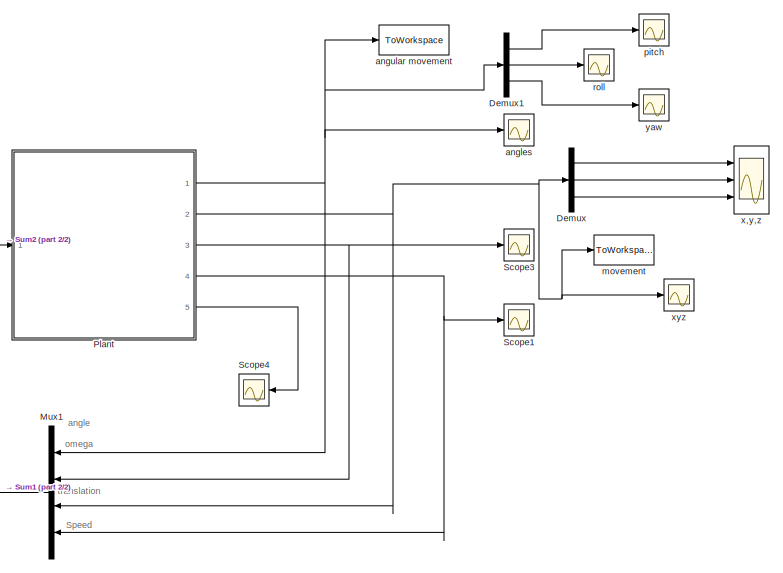
[diagram: root canvas - part 1/2, right side, full height]
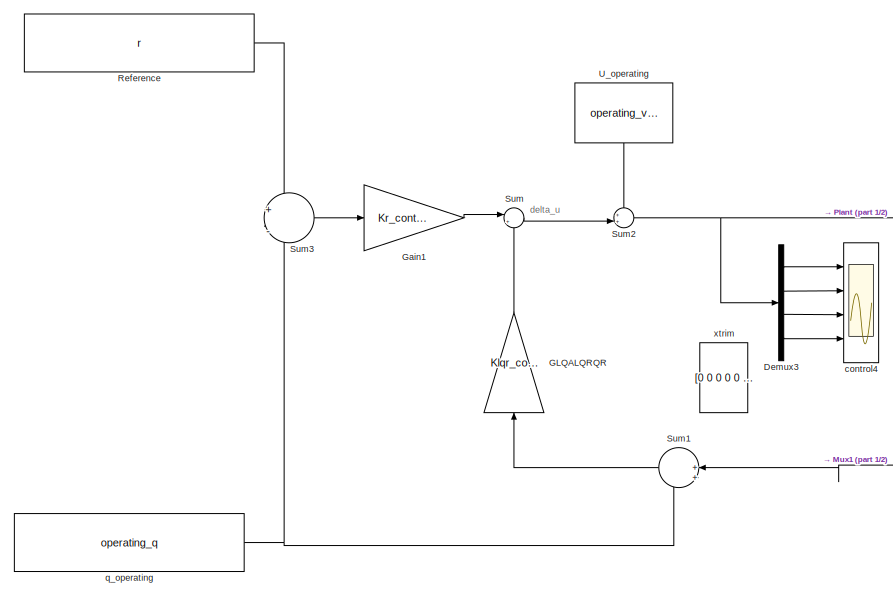
[diagram: root canvas - part 2/2, left side, full height]
MODEL slx_8d24f6540a03
KIND model
CONFIG AbsTol = auto
CONFIG FixedStep = 0.001
CONFIG MaxStep = auto
CONFIG MinStep = auto
CONFIG RelTol = 1e-2
CONFIG SampleTimeConstraint = Unconstrained
CONFIG Solver = ode4
CONFIG SolverMode = Auto
CONFIG SolverName = ode4
CONFIG StartTime = 0.0
CONFIG StopTime = 50
BLOCK [Demux] Demux
  DisplayOption = bar
  Outputs = 3
  Ports = [1, 3]
BLOCK [Demux] Demux1
  DisplayOption = bar
  Outputs = 3
  Ports = [1, 3]
BLOCK [Demux] Demux3
  DisplayOption = bar
  Ports = [1, 4]
BLOCK [Gain] GLQALQRQR
  Gain = Klqr_continuous
  Multiplication = Matrix(K*u)
  OutDataTypeStr = Inherit: Inherit via internal rule
  ParamDataTypeStr = Inherit: Inherit via internal rule
  SaturateOnIntegerOverflow = off
BLOCK [Gain] Gain1
  Gain = Kr_continuous
  Multiplication = Matrix(K*u)
  OutDataTypeStr = Inherit: Inherit via internal rule
  ParamDataTypeStr = Inherit: Inherit via internal rule
  SaturateOnIntegerOverflow = off
BLOCK [Mux] Mux1
  DisplayOption = bar
  Ports = [4, 1]
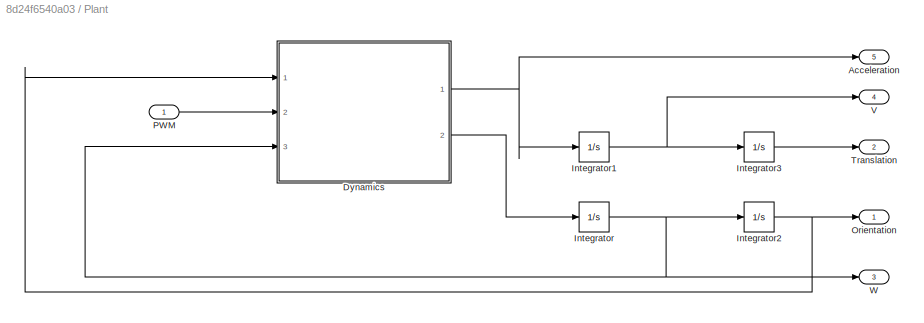
BLOCK [SubSystem] Plant
  Ports = [1, 5]
  RequestExecContextInheritance = off
BLOCK [Outport] Plant/Acceleration
  IconDisplay = Port number
  Port = 5
  PortDimensions = 3
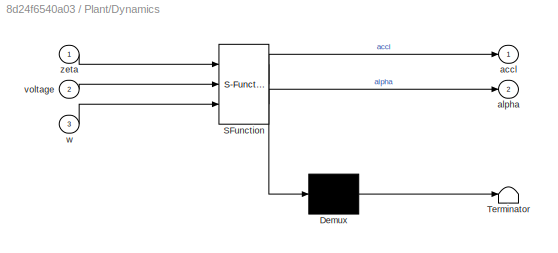
BLOCK [SubSystem] Plant/Dynamics
  ErrorFcn = Stateflow.Translate.translate
  PermitHierarchicalResolution = ExplicitOnly
  Ports = [3, 2]
  RequestExecContextInheritance = off
  SFBlockType = MATLAB Function
  TreatAsAtomicUnit = on
BLOCK [Demux] Plant/Dynamics/ Demux 
  Outputs = 1
  Ports = [1, 1]
BLOCK [S-Function] Plant/Dynamics/ SFunction 
  EnableBusSupport = on
  FunctionName = sf_sfun
  PortCounts = [3 3]
  Ports = [3, 3]
  Tag = Stateflow S-Function crazy_model_LQR 2
BLOCK [Terminator] Plant/Dynamics/ Terminator 
BLOCK [Outport] Plant/Dynamics/accl
  IconDisplay = Port number
BLOCK [Outport] Plant/Dynamics/alpha
  IconDisplay = Port number
  Port = 2
BLOCK [Inport] Plant/Dynamics/voltage
  IconDisplay = Port number
  Port = 2
BLOCK [Inport] Plant/Dynamics/w
  IconDisplay = Port number
  Port = 3
BLOCK [Inport] Plant/Dynamics/zeta
  IconDisplay = Port number
BLOCK [Integrator] Plant/Integrator
  InitialCondition = [0 0 0]'
  Ports = [1, 1]
BLOCK [Integrator] Plant/Integrator1
  InitialCondition = [0 0 0]'
  Ports = [1, 1]
BLOCK [Integrator] Plant/Integrator2
  InitialCondition = angle_initial
  Ports = [1, 1]
BLOCK [Integrator] Plant/Integrator3
  InitialCondition = [0 0 0]'
  Ports = [1, 1]
BLOCK [Outport] Plant/Orientation
  IconDisplay = Port number
BLOCK [Inport] Plant/PWM
  IconDisplay = Port number
BLOCK [Outport] Plant/Translation
  IconDisplay = Port number
  Port = 2
BLOCK [Outport] Plant/V
  IconDisplay = Port number
  Port = 4
BLOCK [Outport] Plant/W
  IconDisplay = Port number
  Port = 3
BLOCK [Constant] Reference
  Value = r
  VectorParams1D = off
BLOCK [Scope] Scope1
  Floating = off
  NumInputPorts = 1
  Ports = [1]
  SaveName = ScopeData1
  ShowLegends = off
  ZoomMode = yonly
BLOCK [Scope] Scope3
  Floating = off
  NumInputPorts = 1
  Ports = [1]
  SaveName = ScopeData3
  ShowLegends = off
  ZoomMode = xonly
BLOCK [Scope] Scope4
  Floating = off
  LimitDataPoints = off
  NumInputPorts = 1
  Ports = [1]
  SaveName = ScopeData4
  ShowLegends = off
  ZoomMode = yonly
BLOCK [Sum] Sum
  IconShape = round
  InputSameDT = off
  Inputs = |+-
  OutDataTypeStr = Inherit: Inherit via internal rule
  Ports = [2, 1]
  SaturateOnIntegerOverflow = off
BLOCK [Sum] Sum1
  IconShape = round
  InputSameDT = off
  Inputs = |++-
  OutDataTypeStr = Inherit: Inherit via internal rule
  Ports = [3, 1]
  SaturateOnIntegerOverflow = off
BLOCK [Sum] Sum2
  IconShape = round
  InputSameDT = off
  Inputs = ++|
  OutDataTypeStr = Inherit: Inherit via internal rule
  Ports = [2, 1]
  SaturateOnIntegerOverflow = off
BLOCK [Sum] Sum3
  IconShape = round
  InputSameDT = off
  Inputs = +|-
  OutDataTypeStr = Inherit: Inherit via internal rule
  Ports = [2, 1]
  SaturateOnIntegerOverflow = off
BLOCK [Constant] U_operating
  Value = operating_voltage
  VectorParams1D = off
BLOCK [Scope] angles
  Floating = off
  LimitDataPoints = off
  NumInputPorts = 1
  Ports = [1]
  SaveName = ScopeData10
  ShowLegends = off
  ZoomMode = yonly
BLOCK [ToWorkspace] angular movement
  FixptAsFi = on
  MaxDataPoints = inf
  Ports = [1]
  SampleTime = -1
  Save2DSignal = 3-D array (concatenate along third dimension)
  SaveFormat = Structure With Time
  VariableName = pitch_roll_yaw
BLOCK [Scope] control4
  Floating = off
  LimitDataPoints = off
  NumInputPorts = 4
  Ports = [4]
  SaveName = ScopeData15
  ShowLegends = off
  YMax = 5~5~5~5
  YMin = -5~-5~-5~-5
  ZoomMode = yonly
BLOCK [ToWorkspace] movement
  FixptAsFi = on
  MaxDataPoints = inf
  Ports = [1]
  SampleTime = -1
  Save2DSignal = 3-D array (concatenate along third dimension)
  SaveFormat = Structure With Time
  VariableName = X_Y_Z
BLOCK [Scope] pitch
  Floating = off
  NumInputPorts = 1
  Ports = [1]
  ShowLegends = off
BLOCK [Constant] q_operating
  Value = operating_q
  VectorParams1D = off
BLOCK [Scope] roll
  Floating = off
  NumInputPorts = 1
  Ports = [1]
  SaveName = ScopeData7
  ShowLegends = off
  TimeRange = 10
  YMax = 25
  YMin = 0
BLOCK [Scope] x,y,z
  Floating = off
  LimitDataPoints = off
  NumInputPorts = 3
  Ports = [3]
  SaveName = ScopeData2
  ShowLegends = off
  YMax = 5~5~5
  YMin = -5~-5~-5
  ZoomMode = yonly
BLOCK [Constant] xtrim
  Value = [0 0 0 0 0 0 0 0 -1.6824 0 0 0]'
BLOCK [Scope] xyz
  Floating = off
  LimitDataPoints = off
  NumInputPorts = 1
  Ports = [1]
  SaveName = ScopeData9
  ShowLegends = off
  TimeRange = 10
  YMax = 120
  YMin = -20
  ZoomMode = yonly
BLOCK [Scope] yaw
  Floating = off
  NumInputPorts = 1
  Ports = [1]
  SaveName = ScopeData8
  ShowLegends = off
ANNOTATION (root): delta_u
ANNOTATION (root): Speed
ANNOTATION (root): angle
ANNOTATION (root): omega
ANNOTATION (root): translation
LINE Demux1:1 -> pitch:1
LINE Demux1:2 -> roll:1
LINE Demux1:3 -> yaw:1
LINE Demux3:1 -> control4:1
LINE Demux3:2 -> control4:2
LINE Demux3:3 -> control4:3
LINE Demux3:4 -> control4:4
LINE Demux:1 -> x,y,z:1
LINE Demux:2 -> x,y,z:2
LINE Demux:3 -> x,y,z:3
LINE GLQALQRQR:1 -> Sum:2
LINE Gain1:1 -> Sum:1
LINE Mux1:1 -> Sum1:2
NET Plant/Dynamics:1 -> Plant/Acceleration:1, Plant/Integrator1:1
LINE Plant/Dynamics:2 -> Plant/Integrator:1
NET Plant/Integrator1:1 -> Plant/Integrator3:1, Plant/V:1
NET Plant/Integrator2:1 -> Plant/Dynamics:1, Plant/Orientation:1
LINE Plant/Integrator3:1 -> Plant/Translation:1
NET Plant/Integrator:1 -> Plant/Dynamics:3, Plant/Integrator2:1, Plant/W:1
LINE Plant/PWM:1 -> Plant/Dynamics:2
NET Plant:1 -> Demux1:1, Mux1:1, angles:1, angular movement:1
NET Plant:2 -> Demux:1, Mux1:3, movement:1, xyz:1
NET Plant:3 -> Mux1:2, Scope3:1
NET Plant:4 -> Mux1:4, Scope1:1
LINE Plant:5 -> Scope4:1
LINE Reference:1 -> Sum3:1
LINE Sum1:1 -> GLQALQRQR:1
NET Sum2:1 -> Demux3:1, Plant:1
LINE Sum3:1 -> Gain1:1
LINE Sum:1 -> Sum2:2
LINE U_operating:1 -> Sum2:1
NET q_operating:1 -> Sum1:3, Sum3:2
note: NET lines group one-source signal fan-out (src -> all destinations, sorted); 1:1 wires keep LINE
CHART Plant/Dynamics states=1 transitions=1
  STATE_LABEL 'eML_blk_kernel()'
  STATE_LABEL 'SCRIPT:\nfunction [accl, alpha] = fcn(zeta, voltage, w)\n\n    Ixx = 2.09*10^(-05);\n    Iyy = 2.09*10^(-05);\n    Izz = 3.81*10^(-05);\n    I = diag([Ixx,Iyy,Izz]);                              % Inertia matrix - needs revision\n\n    d = 0.046;\n    m = 0.027;\n    g = 9.8;\n\n%%%%%%%%%%%%%%%%%%%%%%%%%%%%%%%%%%%%%%%%%%%%%%%%%%%%%%%%%%%%%%%%%%%%%%%%%%%\n%3\n    theta = zeta(1);         % pitch    \n    phi = ze...<+834ch>'
